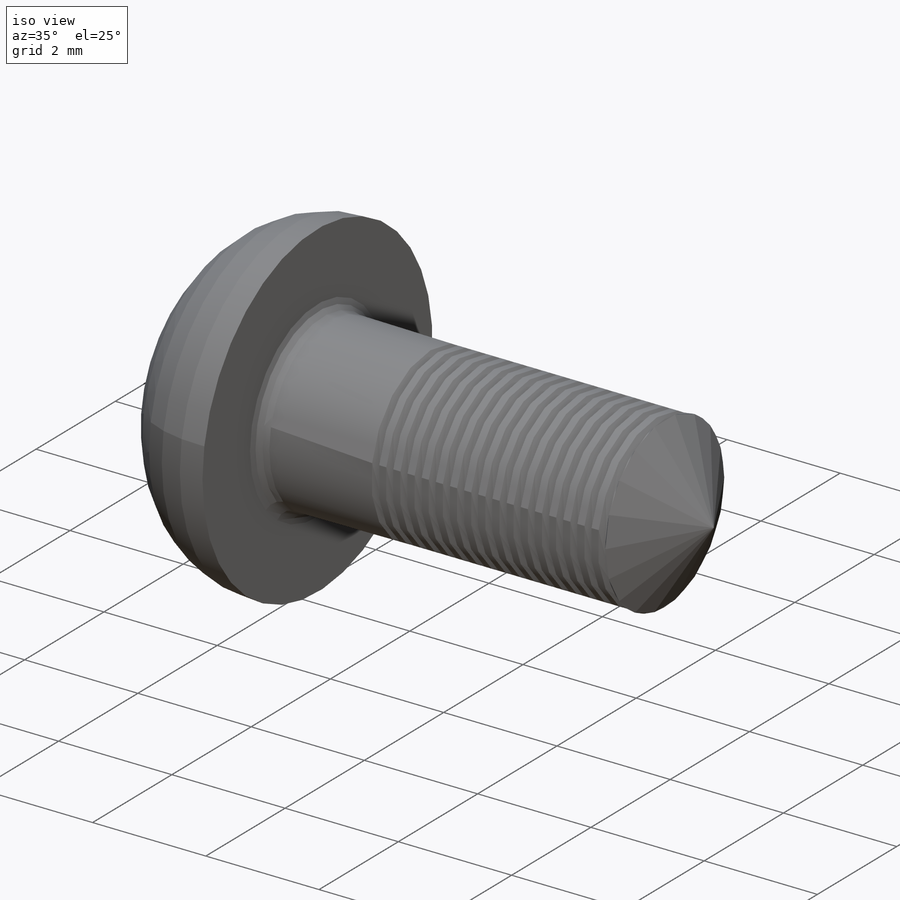
[diagram: iso view]
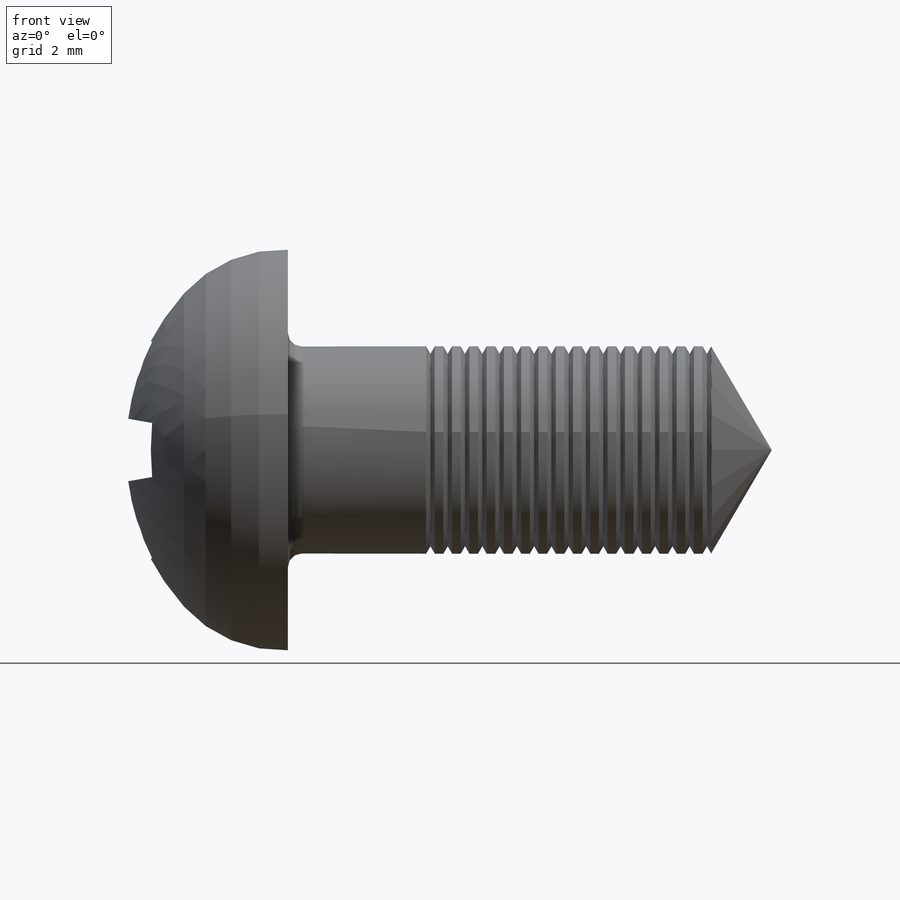
[diagram: front view]
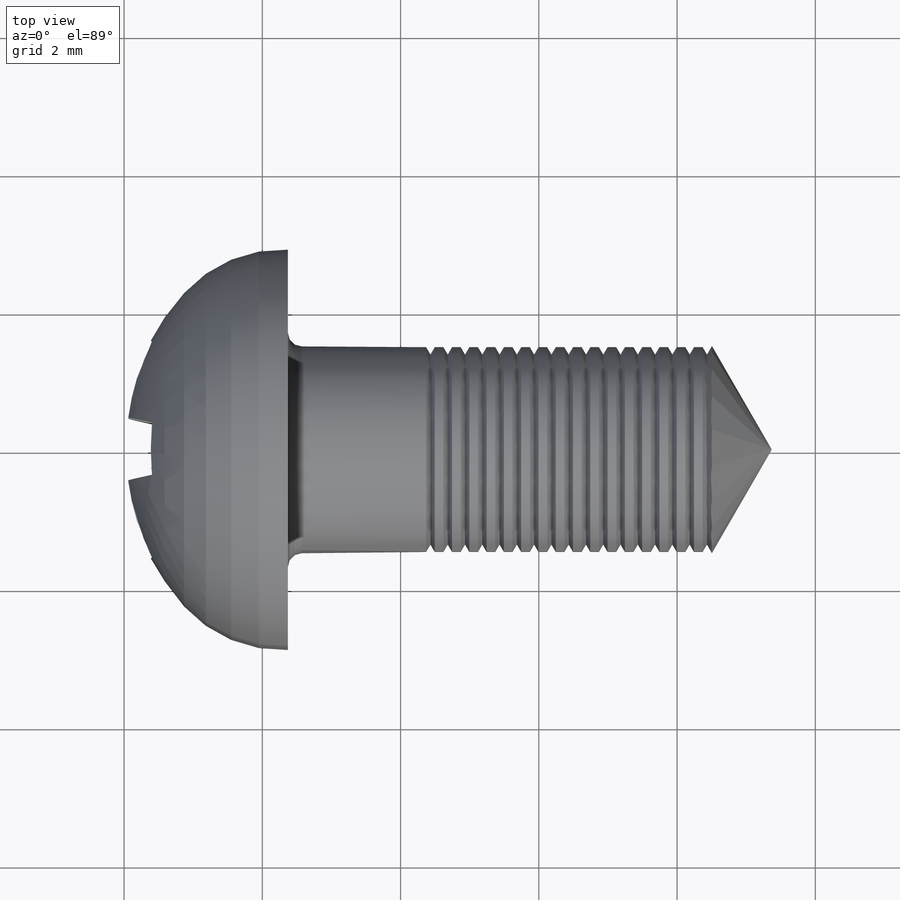
[diagram: top view]
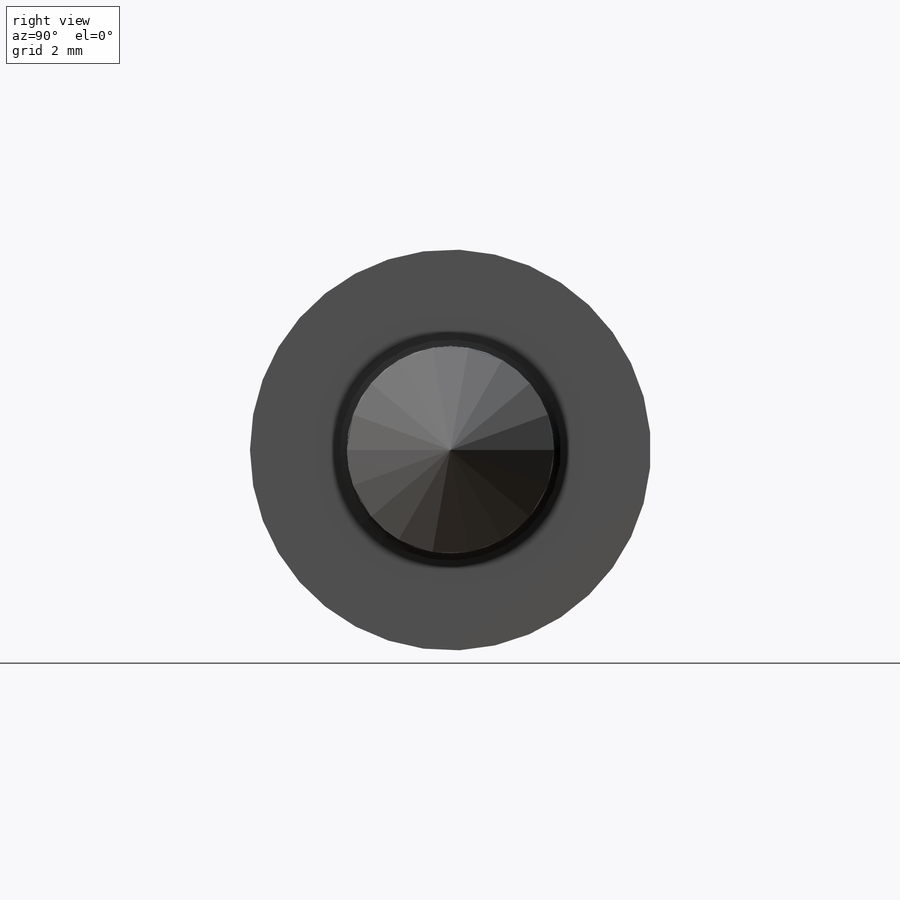
[diagram: right view]
SOLIDWORKS PART (.sldprt)
format: sldprt  version: not decoded by parser v0  size: 486,912 bytes
history: native  units: mm
features: sketch x5, cut_revolve x2, material x1, revolve x1, thread x1, fillet x1, plane x1, pattern_linear x1 (+13 scaffold rows collapsed)
feature tree (26):
  scaffold x13  (default folders/planes/origin — collapsed)
  material  "材质 <未指定>"
  sketch  "Sketch1"  dims[c1.r2=1.9mm c1.r1=3.4mm c1.d=3.0mm c1.dk=5.8mm c1.k=1.5mm c1.l=7.0mm c2.k=2.37mm]
  revolve  "Revolve1"  [1 undecoded]
  thread  "ThreadCosmetic1"  Diameter=3.5mm l0=3.5mm dm=2.75mm  [1 undecoded]
  fillet  "Fillet2"  Radius=0.2mm r=0.2mm
  sketch  "Sketch4"  dims[c1.D1=~2.351921mm c2.D1=60.0deg c2.D2=~0.733455mm c2.D3=21.0mm]
  cut_revolve  "Cut-Revolve1"  Angle=360deg
  sketch  "Sketch2"  dims[m=3.7mm D2=3.7mm D3=0.925mm D4=0.925mm]
  plane  "Plane1"  Offset=0.25mm
  sketch  "Sketch5"
  sketch  "Sketch6"  dims[D1=0.2mm D2=0.125mm D3=5.0mm]
  cut_revolve  "Cut-Revolve10"  Angle=360deg
  pattern_linear  "LPattern10"  Count1=20 Count2=1 Spacing1=0.25mm Spacing2=50mm
decode coverage: 9 of 11 modeling features carry decoded parameters
note: ~ marks probable driven/reference dimensions
note: 2 parameter values undecoded
note: suppression state not decoded; provenance and decode notes live in map.json
